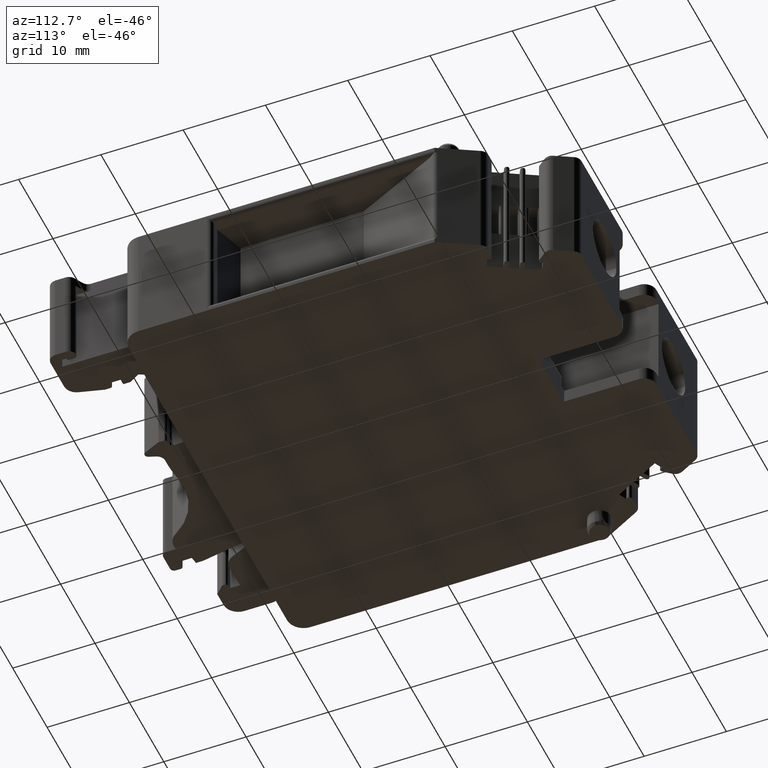
[diagram: clean part render]
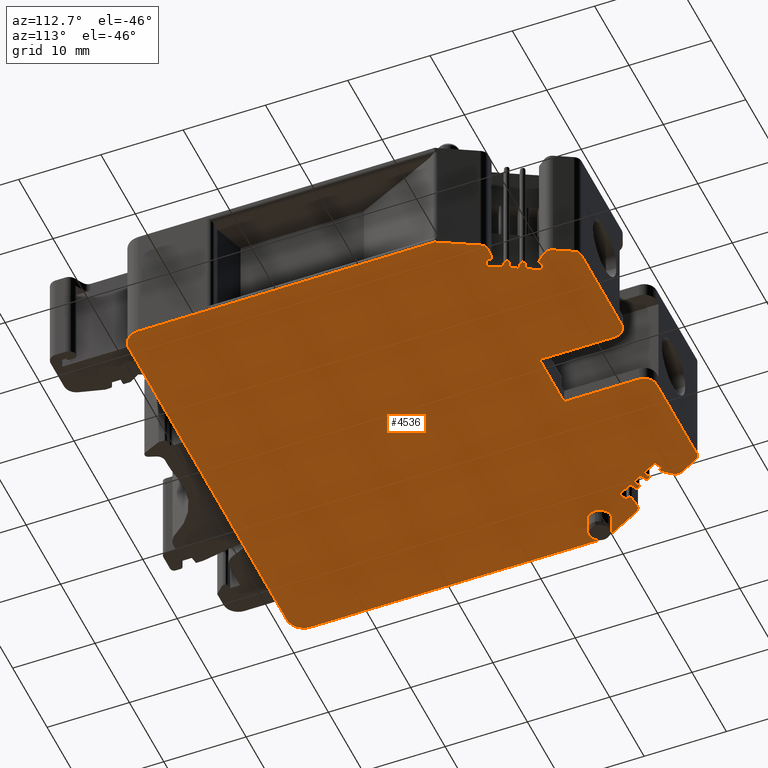
[diagram: same view with one face highlighted and labeled with its STEP entity id]
A machine part, auxiliary view. The second image highlights one B-rep face of the part: STEP entity #4536.
In plain terms, the highlighted planar face has unit normal (0, 0, 1).
Its self-contained STEP definition (entity closure, byte-faithful):
#123=DIRECTION('',(1.E0,0.E0,0.E0));
#124=VECTOR('',#123,1.1693236E1);
#125=CARTESIAN_POINT('',(3.005E1,5.24E1,-1.52E1));
#126=LINE('',#125,#124);
#181=DIRECTION('',(1.E0,-8.507138914012E-14,0.E0));
#182=VECTOR('',#181,1.169323600001E1);
#183=CARTESIAN_POINT('',(8.256763999990E0,5.24E1,-1.52E1));
#184=LINE('',#183,#182);
#215=CARTESIAN_POINT('',(3.005E1,5.09E1,-1.52E1));
#216=DIRECTION('',(0.E0,0.E0,1.E0));
#217=DIRECTION('',(0.E0,1.E0,0.E0));
#218=AXIS2_PLACEMENT_3D('',#215,#216,#217);
#220=DIRECTION('',(0.E0,-1.E0,0.E0));
#221=VECTOR('',#220,9.1E0);
#222=CARTESIAN_POINT('',(2.855E1,5.09E1,-1.52E1));
#223=LINE('',#222,#221);
#224=DIRECTION('',(-1.E0,0.E0,0.E0));
#225=VECTOR('',#224,7.1E0);
#226=CARTESIAN_POINT('',(2.855E1,4.18E1,-1.52E1));
#227=LINE('',#226,#225);
#228=DIRECTION('',(0.E0,1.E0,0.E0));
#229=VECTOR('',#228,9.1E0);
#230=CARTESIAN_POINT('',(2.145E1,4.18E1,-1.52E1));
#231=LINE('',#230,#229);
#232=CARTESIAN_POINT('',(1.995E1,5.09E1,-1.52E1));
#233=DIRECTION('',(0.E0,0.E0,1.E0));
#234=DIRECTION('',(1.E0,0.E0,0.E0));
#235=AXIS2_PLACEMENT_3D('',#232,#233,#234);
#237=CARTESIAN_POINT('',(8.256763085850E0,5.140000212119E1,-1.52E1));
#238=DIRECTION('',(0.E0,0.E0,1.E0));
#239=DIRECTION('',(9.141213609567E-7,9.999999999996E-1,0.E0));
#240=AXIS2_PLACEMENT_3D('',#237,#238,#239);
#242=DIRECTION('',(-4.694714518784E-1,-8.829476518295E-1,0.E0));
#243=VECTOR('',#242,2.361521654980E0);
#244=CARTESIAN_POINT('',(7.373816999998E0,5.1869472E1,-1.52E1));
#245=LINE('',#244,#243);
#246=CARTESIAN_POINT('',(7.148095693080E0,4.931490052930E1,-1.52E1));
#247=DIRECTION('',(0.E0,0.E0,1.E0));
#248=DIRECTION('',(-8.829472123143E-1,4.694722784856E-1,0.E0));
#249=AXIS2_PLACEMENT_3D('',#246,#247,#248);
#251=DIRECTION('',(6.292735728387E-1,-7.771838717619E-1,0.E0));
#252=VECTOR('',#251,1.239305182470E0);
#253=CARTESIAN_POINT('',(6.370913999993E0,4.868562700001E1,-1.52E1));
#254=LINE('',#253,#252);
#255=DIRECTION('',(8.829193589764E-1,-4.695246591445E-1,0.E0));
#256=VECTOR('',#255,2.000001451964E-1);
#257=CARTESIAN_POINT('',(7.150776000004E0,4.7722459E1,-1.52E1));
#258=LINE('',#257,#256);
#259=CARTESIAN_POINT('',(7.421265061770E0,4.780513779792E1,-1.52E1));
#260=DIRECTION('',(0.E0,0.E0,1.E0));
#261=DIRECTION('',(-4.695253187739E-1,-8.829190081940E-1,0.E0));
#262=AXIS2_PLACEMENT_3D('',#259,#260,#261);
#264=DIRECTION('',(4.695235960998E-1,8.829199242885E-1,0.E0));
#265=VECTOR('',#264,2.750000236007E-1);
#266=CARTESIAN_POINT('',(7.597848999993E0,4.771123299998E1,-1.52E1));
#267=LINE('',#266,#265);
#268=DIRECTION('',(8.829198525023E-1,-4.695237310907E-1,0.E0));
#269=VECTOR('',#268,1.050000175407E0);
#270=CARTESIAN_POINT('',(7.726968000001E0,4.7954036E1,-1.52E1));
#271=LINE('',#270,#269);
#272=DIRECTION('',(-4.695241721178E-1,-8.829196179705E-1,0.E0));
#273=VECTOR('',#272,1.949999711137E0);
#274=CARTESIAN_POINT('',(8.654033999999E0,4.7461036E1,-1.52E1));
#275=LINE('',#274,#273);
#276=DIRECTION('',(-8.829196550951E-1,4.695241023065E-1,0.E0));
#277=VECTOR('',#276,7.000002734404E-1);
#278=CARTESIAN_POINT('',(7.738461999998E0,4.5739343E1,-1.52E1));
#279=LINE('',#278,#277);
#280=CARTESIAN_POINT('',(6.9795605E0,4.5803134E1,-1.52E1));
#281=DIRECTION('',(0.E0,0.E0,1.E0));
#282=DIRECTION('',(4.695246591518E-1,8.829193589725E-1,0.E0));
#283=AXIS2_PLACEMENT_3D('',#280,#281,#282);
#285=DIRECTION('',(8.829196543606E-1,-4.695241036877E-1,0.E0));
#286=VECTOR('',#285,7.000002734399E-1);
#287=CARTESIAN_POINT('',(6.838703000001E0,4.5538258E1,-1.52E1));
#288=LINE('',#287,#286);
#289=DIRECTION('',(-4.695240094950E-1,-8.829197044509E-1,0.E0));
#290=VECTOR('',#289,1.200000402310E0);
#291=CARTESIAN_POINT('',(7.456746999479E0,4.520959099903E1,-1.52E1));
#292=LINE('',#291,#290);
#293=DIRECTION('',(-8.829196539438E-1,4.695241044715E-1,0.E0));
#294=VECTOR('',#293,7.000002734326E-1);
#295=CARTESIAN_POINT('',(6.893317999190E0,4.415008699848E1,-1.52E1));
#296=LINE('',#295,#294);
#297=CARTESIAN_POINT('',(6.134417E0,4.42138785E1,-1.52E1));
#298=DIRECTION('',(0.E0,0.E0,1.E0));
#299=DIRECTION('',(4.695240508775E-1,8.829196824443E-1,0.E0));
#300=AXIS2_PLACEMENT_3D('',#297,#298,#299);
#302=DIRECTION('',(8.829193401652E-1,-4.695246945180E-1,0.E0));
#303=VECTOR('',#302,6.999993905287E-1);
#304=CARTESIAN_POINT('',(5.99356E0,4.3949003E1,-1.52E1));
#305=LINE('',#304,#303);
#306=DIRECTION('',(-4.695239595274E-1,-8.829197310230E-1,0.E0));
#307=VECTOR('',#306,1.950000594056E0);
#308=CARTESIAN_POINT('',(6.611603000001E0,4.3620336E1,-1.52E1));
#309=LINE('',#308,#307);
#310=DIRECTION('',(-8.829194576931E-1,4.695244735122E-1,0.E0));
#311=VECTOR('',#310,1.050000644930E0);
#312=CARTESIAN_POINT('',(5.696030999999E0,4.1898642E1,-1.52E1));
#313=LINE('',#312,#311);
#314=DIRECTION('',(4.695264308121E-1,8.829184168250E-1,0.E0));
#315=VECTOR('',#314,2.750004931416E-1);
#316=CARTESIAN_POINT('',(4.768965000001E0,4.2391643E1,-1.52E1));
#317=LINE('',#316,#315);
#318=CARTESIAN_POINT('',(4.721501202080E0,4.272835106177E1,-1.52E1));
#319=DIRECTION('',(0.E0,0.E0,1.E0));
#320=DIRECTION('',(8.829190083100E-1,-4.695253185557E-1,0.E0));
#321=AXIS2_PLACEMENT_3D('',#318,#319,#320);
#323=DIRECTION('',(-8.829214317560E-1,4.695207613577E-1,0.E0));
#324=VECTOR('',#323,1.999996756858E-1);
#325=CARTESIAN_POINT('',(4.815406000007E0,4.2904935E1,-1.52E1));
#326=LINE('',#325,#324);
#327=DIRECTION('',(-9.961894519058E-1,8.721568615578E-2,0.E0));
#328=VECTOR('',#327,1.239077564636E0);
#329=CARTESIAN_POINT('',(4.638822E0,4.2998839E1,-1.52E1));
#330=LINE('',#329,#328);
#331=CARTESIAN_POINT('',(3.317251472990E0,4.211071631745E1,-1.52E1));
#332=DIRECTION('',(0.E0,0.E0,1.E0));
#333=DIRECTION('',(8.721451582047E-2,9.961895543671E-1,0.E0));
#334=AXIS2_PLACEMENT_3D('',#331,#332,#333);
#336=DIRECTION('',(-4.694715754320E-1,-8.829475861349E-1,0.E0));
#337=VECTOR('',#336,5.162212425236E0);
#338=CARTESIAN_POINT('',(2.423511999989E0,4.255930299998E1,-1.52E1));
#339=LINE('',#338,#337);
#340=DIRECTION('',(2.294375410441E-14,-1.E0,0.E0));
#341=VECTOR('',#340,3.600134165325E1);
#342=CARTESIAN_POINT('',(-8.177162650706E-13,3.800134E1,-1.52E1));
#343=LINE('',#342,#341);
#344=CARTESIAN_POINT('',(1.999998505850E0,1.999998505850E0,-1.52E1));
#345=DIRECTION('',(0.E0,0.E0,1.E0));
#346=DIRECTION('',(-1.E0,-2.075200861611E-7,0.E0));
#347=AXIS2_PLACEMENT_3D('',#344,#345,#346);
#349=DIRECTION('',(1.E0,0.E0,0.E0));
#350=VECTOR('',#349,4.600000211210E1);
#351=CARTESIAN_POINT('',(1.999999294430E0,1.124285849604E-13,-1.52E1));
#352=LINE('',#351,#350);
#353=CARTESIAN_POINT('',(4.800000149415E1,1.999998505850E0,-1.52E1));
#354=DIRECTION('',(0.E0,0.E0,1.E0));
#355=DIRECTION('',(4.150540436810E-8,-1.E0,0.E0));
#356=AXIS2_PLACEMENT_3D('',#353,#354,#355);
#358=DIRECTION('',(-4.694715754322E-1,8.829475861348E-1,0.E0));
#359=VECTOR('',#358,5.162212425258E0);
#360=CARTESIAN_POINT('',(5.E1,3.800134E1,-1.52E1));
#361=LINE('',#360,#359);
#362=CARTESIAN_POINT('',(4.668274852701E1,4.211071631745E1,-1.52E1));
#363=DIRECTION('',(0.E0,0.E0,1.E0));
#364=DIRECTION('',(8.937393579866E-1,4.485866248404E-1,0.E0));
#365=AXIS2_PLACEMENT_3D('',#362,#363,#364);
#367=DIRECTION('',(-9.961894519057E-1,-8.721568615671E-2,0.E0));
#368=VECTOR('',#367,1.239077564641E0);
#369=CARTESIAN_POINT('',(4.659553399999E1,4.3106906E1,-1.52E1));
#370=LINE('',#369,#368);
#371=DIRECTION('',(-8.829214317577E-1,-4.695207613545E-1,0.E0));
#372=VECTOR('',#371,1.999996756867E-1);
#373=CARTESIAN_POINT('',(4.5361178E1,4.2998839E1,-1.52E1));
#374=LINE('',#373,#372);
#375=CARTESIAN_POINT('',(4.527849879792E1,4.272835106177E1,-1.52E1));
#376=DIRECTION('',(0.E0,0.E0,1.E0));
#377=DIRECTION('',(-4.695239995845E-1,8.829197097212E-1,0.E0));
#378=AXIS2_PLACEMENT_3D('',#375,#376,#377);
#380=DIRECTION('',(4.695264308158E-1,-8.829184168231E-1,0.E0));
#381=VECTOR('',#380,2.750004931558E-1);
#382=CARTESIAN_POINT('',(4.510191499997E1,4.263444600004E1,-1.52E1));
#383=LINE('',#382,#381);
#384=DIRECTION('',(-8.829194576934E-1,-4.695244735116E-1,0.E0));
#385=VECTOR('',#384,1.050000644927E0);
#386=CARTESIAN_POINT('',(4.5231035E1,4.2391643E1,-1.52E1));
#387=LINE('',#386,#385);
#388=DIRECTION('',(-4.695239595288E-1,8.829197310222E-1,0.E0));
#389=VECTOR('',#388,1.950000594056E0);
#390=CARTESIAN_POINT('',(4.4303969E1,4.1898642E1,-1.52E1));
#391=LINE('',#390,#389);
#392=DIRECTION('',(8.829193401657E-1,4.695246945170E-1,0.E0));
#393=VECTOR('',#392,6.999993905260E-1);
#394=CARTESIAN_POINT('',(4.3388397E1,4.3620336E1,-1.52E1));
#395=LINE('',#394,#393);
#396=CARTESIAN_POINT('',(4.3865583E1,4.42138785E1,-1.52E1));
#397=DIRECTION('',(0.E0,0.E0,1.E0));
#398=DIRECTION('',(4.695240507563E-1,-8.829196825088E-1,0.E0));
#399=AXIS2_PLACEMENT_3D('',#396,#397,#398);
#401=DIRECTION('',(-8.829196547811E-1,-4.695241028969E-1,0.E0));
#402=VECTOR('',#401,7.000002734448E-1);
#403=CARTESIAN_POINT('',(4.3724726E1,4.4478754E1,-1.52E1));
#404=LINE('',#403,#402);
#405=DIRECTION('',(-4.695240094939E-1,8.829197044515E-1,0.E0));
#406=VECTOR('',#405,1.200000400087E0);
#407=CARTESIAN_POINT('',(4.310668200022E1,4.415008699958E1,-1.52E1));
#408=LINE('',#407,#406);
#409=DIRECTION('',(8.829196537038E-1,4.695241049228E-1,0.E0));
#410=VECTOR('',#409,7.000002734432E-1);
#411=CARTESIAN_POINT('',(4.254325300098E1,4.520959099817E1,-1.52E1));
#412=LINE('',#411,#410);
#413=CARTESIAN_POINT('',(4.30204395E1,4.5803134E1,-1.52E1));
#414=DIRECTION('',(0.E0,0.E0,1.E0));
#415=DIRECTION('',(4.695246591218E-1,-8.829193589884E-1,0.E0));
#416=AXIS2_PLACEMENT_3D('',#413,#414,#415);
#418=DIRECTION('',(-8.829196550964E-1,-4.695241023041E-1,0.E0));
#419=VECTOR('',#418,7.000002734389E-1);
#420=CARTESIAN_POINT('',(4.287958199999E1,4.606801E1,-1.52E1));
#421=LINE('',#420,#419);
#422=DIRECTION('',(-4.695241721191E-1,8.829196179698E-1,0.E0));
#423=VECTOR('',#422,1.949999711138E0);
#424=CARTESIAN_POINT('',(4.2261538E1,4.5739343E1,-1.52E1));
#425=LINE('',#424,#423);
#426=DIRECTION('',(8.829198525029E-1,4.695237310895E-1,0.E0));
#427=VECTOR('',#426,1.050000175411E0);
#428=CARTESIAN_POINT('',(4.1345966E1,4.7461036E1,-1.52E1));
#429=LINE('',#428,#427);
#430=DIRECTION('',(4.695235960868E-1,-8.829199242954E-1,1.291895772345E-14));
#431=VECTOR('',#430,2.750000235971E-1);
#432=CARTESIAN_POINT('',(4.2273032E1,4.7954036E1,-1.52E1));
#433=LINE('',#432,#431);
#434=CARTESIAN_POINT('',(4.257873493823E1,4.780513779792E1,-1.52E1));
#435=DIRECTION('',(0.E0,0.E0,1.E0));
#436=DIRECTION('',(-8.829197097165E-1,-4.695239995934E-1,0.E0));
#437=AXIS2_PLACEMENT_3D('',#434,#435,#436);
#439=DIRECTION('',(8.829193589756E-1,4.695246591459E-1,0.E0));
#440=VECTOR('',#439,2.000001452151E-1);
#441=CARTESIAN_POINT('',(4.267263999999E1,4.762855399999E1,-1.52E1));
#442=LINE('',#441,#440);
#443=DIRECTION('',(6.292735728410E-1,7.771838717600E-1,0.E0));
#444=VECTOR('',#443,1.239305182448E0);
#445=CARTESIAN_POINT('',(4.2849224E1,4.772245900001E1,-1.52E1));
#446=LINE('',#445,#444);
#447=CARTESIAN_POINT('',(4.285190430692E1,4.931490052930E1,-1.52E1));
#448=DIRECTION('',(0.E0,0.E0,1.E0));
#449=DIRECTION('',(7.771830303065E-1,-6.292746120761E-1,0.E0));
#450=AXIS2_PLACEMENT_3D('',#447,#448,#449);
#452=DIRECTION('',(-4.694714518805E-1,8.829476518283E-1,0.E0));
#453=VECTOR('',#452,2.361521654998E0);
#454=CARTESIAN_POINT('',(4.373485000002E1,4.978437199998E1,-1.52E1));
#455=LINE('',#454,#453);
#456=CARTESIAN_POINT('',(4.174323691415E1,5.140000212119E1,-1.52E1));
#457=DIRECTION('',(0.E0,0.E0,1.E0));
#458=DIRECTION('',(8.829479587463E-1,4.694708746512E-1,0.E0));
#459=AXIS2_PLACEMENT_3D('',#456,#457,#458);
#461=CARTESIAN_POINT('',(3.E0,3.84E1,-1.52E1));
#462=DIRECTION('',(0.E0,0.E0,-1.E0));
#463=DIRECTION('',(-1.E0,0.E0,0.E0));
#464=AXIS2_PLACEMENT_3D('',#461,#462,#463);
#466=CARTESIAN_POINT('',(3.E0,3.84E1,-1.52E1));
#467=DIRECTION('',(0.E0,0.E0,-1.E0));
#468=DIRECTION('',(1.E0,0.E0,0.E0));
#469=AXIS2_PLACEMENT_3D('',#466,#467,#468);
#1377=DIRECTION('',(-2.072339126992E-14,-1.E0,0.E0));
#1378=VECTOR('',#1377,3.600134084381E1);
#1379=CARTESIAN_POINT('',(5.E1,3.800134E1,-1.52E1));
#1380=LINE('',#1379,#1378);
#3072=CARTESIAN_POINT('',(4.3161297E1,4.5538258E1,-1.52E1));
#3073=VERTEX_POINT('',#3072);
#3074=CARTESIAN_POINT('',(4.254325300098E1,4.520959099817E1,-1.52E1));
#3075=VERTEX_POINT('',#3074);
#3082=CARTESIAN_POINT('',(4.287958199999E1,4.606801E1,-1.52E1));
#3083=VERTEX_POINT('',#3082);
#3085=CARTESIAN_POINT('',(4.2261538E1,4.5739343E1,-1.52E1));
#3087=VERTEX_POINT('',#3085);
#3089=CARTESIAN_POINT('',(4.1345966E1,4.7461036E1,-1.52E1));
#3091=VERTEX_POINT('',#3089);
#3105=CARTESIAN_POINT('',(4.2273032E1,4.7954036E1,-1.52E1));
#3107=VERTEX_POINT('',#3105);
#3112=CARTESIAN_POINT('',(4.2402151E1,4.771123299999E1,-1.52E1));
#3113=VERTEX_POINT('',#3112);
#3118=CARTESIAN_POINT('',(4.267263999999E1,4.762855399999E1,-1.52E1));
#3119=VERTEX_POINT('',#3118);
#3121=CARTESIAN_POINT('',(4.2849224E1,4.772245900001E1,-1.52E1));
#3123=VERTEX_POINT('',#3121);
#3128=CARTESIAN_POINT('',(4.3629086E1,4.868562699999E1,-1.52E1));
#3129=VERTEX_POINT('',#3128);
#3134=CARTESIAN_POINT('',(4.373485000002E1,4.978437199998E1,-1.52E1));
#3135=VERTEX_POINT('',#3134);
#3140=CARTESIAN_POINT('',(4.2626183E1,5.1869472E1,-1.52E1));
#3141=VERTEX_POINT('',#3140);
#3142=CARTESIAN_POINT('',(4.1743236E1,5.24E1,-1.52E1));
#3143=VERTEX_POINT('',#3142);
#3174=CARTESIAN_POINT('',(-8.177162650706E-13,3.800134E1,-1.52E1));
#3175=CARTESIAN_POINT('',(0.E0,1.999998346752E0,-1.52E1));
#3176=VERTEX_POINT('',#3174);
#3177=VERTEX_POINT('',#3175);
#3190=CARTESIAN_POINT('',(5.E1,3.800134E1,-1.52E1));
#3191=VERTEX_POINT('',#3190);
#3192=CARTESIAN_POINT('',(5.E1,1.999999156189E0,-1.52E1));
#3193=VERTEX_POINT('',#3192);
#3230=CARTESIAN_POINT('',(4.7576488E1,4.2559303E1,-1.52E1));
#3231=VERTEX_POINT('',#3230);
#3236=CARTESIAN_POINT('',(4.659553399999E1,4.3106906E1,-1.52E1));
#3237=VERTEX_POINT('',#3236);
#3239=CARTESIAN_POINT('',(4.5361178E1,4.2998839E1,-1.52E1));
#3241=VERTEX_POINT('',#3239);
#3246=CARTESIAN_POINT('',(4.518459399999E1,4.2904935E1,-1.52E1));
#3247=VERTEX_POINT('',#3246);
#3252=CARTESIAN_POINT('',(4.510191499997E1,4.263444600004E1,-1.52E1));
#3253=VERTEX_POINT('',#3252);
#3255=CARTESIAN_POINT('',(4.5231035E1,4.2391643E1,-1.52E1));
#3257=VERTEX_POINT('',#3255);
#3259=CARTESIAN_POINT('',(4.4303969E1,4.1898642E1,-1.52E1));
#3261=VERTEX_POINT('',#3259);
#3263=CARTESIAN_POINT('',(4.3388397E1,4.3620336E1,-1.52E1));
#3265=VERTEX_POINT('',#3263);
#3282=CARTESIAN_POINT('',(4.400644E1,4.3949003E1,-1.52E1));
#3283=VERTEX_POINT('',#3282);
#3288=CARTESIAN_POINT('',(4.3724726E1,4.4478754E1,-1.52E1));
#3289=VERTEX_POINT('',#3288);
#3292=CARTESIAN_POINT('',(4.310668200022E1,4.415008699958E1,-1.52E1));
#3293=VERTEX_POINT('',#3292);
#3368=CARTESIAN_POINT('',(7.373816999998E0,5.1869472E1,-1.52E1));
#3369=VERTEX_POINT('',#3368);
#3370=CARTESIAN_POINT('',(8.256763999969E0,5.24E1,-1.52E1));
#3371=VERTEX_POINT('',#3370);
#3374=CARTESIAN_POINT('',(6.265149999992E0,4.978437199999E1,-1.52E1));
#3375=VERTEX_POINT('',#3374);
#3378=CARTESIAN_POINT('',(6.370913999993E0,4.868562700001E1,-1.52E1));
#3379=VERTEX_POINT('',#3378);
#3380=CARTESIAN_POINT('',(7.150776000004E0,4.7722459E1,-1.52E1));
#3381=VERTEX_POINT('',#3380);
#3384=CARTESIAN_POINT('',(7.327359999996E0,4.7628554E1,-1.52E1));
#3385=VERTEX_POINT('',#3384);
#3388=CARTESIAN_POINT('',(7.597848999993E0,4.771123299998E1,-1.52E1));
#3389=VERTEX_POINT('',#3388);
#3390=CARTESIAN_POINT('',(7.726968000001E0,4.7954036E1,-1.52E1));
#3391=VERTEX_POINT('',#3390);
#3392=CARTESIAN_POINT('',(8.654033999999E0,4.7461036E1,-1.52E1));
#3393=VERTEX_POINT('',#3392);
#3394=CARTESIAN_POINT('',(7.738461999998E0,4.5739343E1,-1.52E1));
#3395=VERTEX_POINT('',#3394);
#3410=CARTESIAN_POINT('',(7.120418000005E0,4.606801E1,-1.52E1));
#3411=VERTEX_POINT('',#3410);
#3414=CARTESIAN_POINT('',(6.838703000001E0,4.5538258E1,-1.52E1));
#3415=VERTEX_POINT('',#3414);
#3420=CARTESIAN_POINT('',(7.456746999479E0,4.520959099903E1,-1.52E1));
#3421=VERTEX_POINT('',#3420);
#3448=CARTESIAN_POINT('',(6.275274000011E0,4.4478754E1,-1.52E1));
#3449=VERTEX_POINT('',#3448);
#3450=CARTESIAN_POINT('',(6.893317999190E0,4.415008699848E1,-1.52E1));
#3451=VERTEX_POINT('',#3450);
#3454=CARTESIAN_POINT('',(5.99356E0,4.3949003E1,-1.52E1));
#3455=VERTEX_POINT('',#3454);
#3456=CARTESIAN_POINT('',(6.611603000001E0,4.3620336E1,-1.52E1));
#3457=VERTEX_POINT('',#3456);
#3458=CARTESIAN_POINT('',(5.696030999999E0,4.1898642E1,-1.52E1));
#3459=VERTEX_POINT('',#3458);
#3472=CARTESIAN_POINT('',(4.768965000001E0,4.2391643E1,-1.52E1));
#3473=VERTEX_POINT('',#3472);
#3476=CARTESIAN_POINT('',(4.898085000017E0,4.263444600003E1,-1.52E1));
#3477=VERTEX_POINT('',#3476);
#3480=CARTESIAN_POINT('',(4.815406000007E0,4.2904935E1,-1.52E1));
#3481=VERTEX_POINT('',#3480);
#3482=CARTESIAN_POINT('',(4.638822E0,4.2998839E1,-1.52E1));
#3483=VERTEX_POINT('',#3482);
#3486=CARTESIAN_POINT('',(3.404466000017E0,4.3106906E1,-1.52E1));
#3487=VERTEX_POINT('',#3486);
#3490=CARTESIAN_POINT('',(2.423511999989E0,4.255930299998E1,-1.52E1));
#3491=VERTEX_POINT('',#3490);
#3506=CARTESIAN_POINT('',(1.999998920890E0,4.307665335546E-14,-1.52E1));
#3507=VERTEX_POINT('',#3506);
#3508=CARTESIAN_POINT('',(4.800000140653E1,3.567516652462E-14,-1.52E1));
#3509=VERTEX_POINT('',#3508);
#3510=CARTESIAN_POINT('',(1.6E0,3.84E1,-1.52E1));
#3511=CARTESIAN_POINT('',(4.4E0,3.84E1,-1.52E1));
#3512=VERTEX_POINT('',#3510);
#3513=VERTEX_POINT('',#3511);
#3942=CARTESIAN_POINT('',(2.855E1,5.09E1,-1.52E1));
#3943=CARTESIAN_POINT('',(2.855E1,4.18E1,-1.52E1));
#3944=VERTEX_POINT('',#3942);
#3945=VERTEX_POINT('',#3943);
#3946=CARTESIAN_POINT('',(2.145E1,4.18E1,-1.52E1));
#3947=VERTEX_POINT('',#3946);
#3948=CARTESIAN_POINT('',(2.145E1,5.09E1,-1.52E1));
#3949=VERTEX_POINT('',#3948);
#3950=CARTESIAN_POINT('',(3.005E1,5.24E1,-1.52E1));
#3951=VERTEX_POINT('',#3950);
#3952=CARTESIAN_POINT('',(1.995E1,5.24E1,-1.52E1));
#3953=VERTEX_POINT('',#3952);
#4422=CARTESIAN_POINT('',(2.5E1,2.62E1,-1.52E1));
#4423=DIRECTION('',(0.E0,0.E0,1.E0));
#4424=DIRECTION('',(-1.E0,0.E0,0.E0));
#4425=AXIS2_PLACEMENT_3D('',#4422,#4423,#4424);
#4426=PLANE('',#4425);
#4427=ORIENTED_EDGE('',*,*,#4288,.F.);
#4428=ORIENTED_EDGE('',*,*,#4317,.T.);
#4429=ORIENTED_EDGE('',*,*,#4332,.T.);
#4430=ORIENTED_EDGE('',*,*,#4347,.T.);
#4431=ORIENTED_EDGE('',*,*,#4370,.T.);
#4432=ORIENTED_EDGE('',*,*,#4385,.T.);
#4433=ORIENTED_EDGE('',*,*,#4398,.F.);
#4435=ORIENTED_EDGE('',*,*,#4434,.T.);
#4437=ORIENTED_EDGE('',*,*,#4436,.T.);
#4439=ORIENTED_EDGE('',*,*,#4438,.T.);
#4441=ORIENTED_EDGE('',*,*,#4440,.T.);
#4443=ORIENTED_EDGE('',*,*,#4442,.T.);
#4445=ORIENTED_EDGE('',*,*,#4444,.T.);
#4447=ORIENTED_EDGE('',*,*,#4446,.T.);
#4449=ORIENTED_EDGE('',*,*,#4448,.T.);
#4451=ORIENTED_EDGE('',*,*,#4450,.T.);
#4453=ORIENTED_EDGE('',*,*,#4452,.T.);
#4455=ORIENTED_EDGE('',*,*,#4454,.T.);
#4457=ORIENTED_EDGE('',*,*,#4456,.T.);
#4459=ORIENTED_EDGE('',*,*,#4458,.T.);
#4461=ORIENTED_EDGE('',*,*,#4460,.T.);
#4463=ORIENTED_EDGE('',*,*,#4462,.T.);
#4465=ORIENTED_EDGE('',*,*,#4464,.T.);
#4467=ORIENTED_EDGE('',*,*,#4466,.T.);
#4469=ORIENTED_EDGE('',*,*,#4468,.T.);
#4471=ORIENTED_EDGE('',*,*,#4470,.T.);
#4473=ORIENTED_EDGE('',*,*,#4472,.T.);
#4475=ORIENTED_EDGE('',*,*,#4474,.T.);
#4477=ORIENTED_EDGE('',*,*,#4476,.T.);
#4479=ORIENTED_EDGE('',*,*,#4478,.T.);
#4481=ORIENTED_EDGE('',*,*,#4480,.T.);
#4483=ORIENTED_EDGE('',*,*,#4482,.T.);
#4485=ORIENTED_EDGE('',*,*,#4484,.T.);
#4487=ORIENTED_EDGE('',*,*,#4486,.T.);
#4489=ORIENTED_EDGE('',*,*,#4488,.T.);
#4491=ORIENTED_EDGE('',*,*,#4490,.F.);
#4493=ORIENTED_EDGE('',*,*,#4492,.T.);
#4495=ORIENTED_EDGE('',*,*,#4494,.T.);
#4497=ORIENTED_EDGE('',*,*,#4496,.T.);
#4499=ORIENTED_EDGE('',*,*,#4498,.T.);
#4501=ORIENTED_EDGE('',*,*,#4500,.T.);
#4503=ORIENTED_EDGE('',*,*,#4502,.T.);
#4505=ORIENTED_EDGE('',*,*,#4504,.T.);
#4507=ORIENTED_EDGE('',*,*,#4506,.T.);
#4509=ORIENTED_EDGE('',*,*,#4508,.T.);
#4511=ORIENTED_EDGE('',*,*,#4510,.T.);
#4513=ORIENTED_EDGE('',*,*,#4512,.T.);
#4515=ORIENTED_EDGE('',*,*,#4514,.T.);
#4516=ORIENTED_EDGE('',*,*,#4071,.T.);
#4517=ORIENTED_EDGE('',*,*,#4092,.T.);
#4518=ORIENTED_EDGE('',*,*,#4108,.T.);
#4519=ORIENTED_EDGE('',*,*,#4124,.T.);
#4520=ORIENTED_EDGE('',*,*,#4153,.T.);
#4521=ORIENTED_EDGE('',*,*,#4170,.T.);
#4522=ORIENTED_EDGE('',*,*,#4187,.T.);
#4523=ORIENTED_EDGE('',*,*,#4203,.T.);
#4524=ORIENTED_EDGE('',*,*,#4221,.T.);
#4525=ORIENTED_EDGE('',*,*,#4238,.T.);
#4526=ORIENTED_EDGE('',*,*,#4256,.T.);
#4527=ORIENTED_EDGE('',*,*,#4272,.T.);
#4528=EDGE_LOOP('',(#4427,#4428,#4429,#4430,#4431,#4432,#4433,#4435,#4437,#4439,
#4441,#4443,#4445,#4447,#4449,#4451,#4453,#4455,#4457,#4459,#4461,#4463,#4465,
#4467,#4469,#4471,#4473,#4475,#4477,#4479,#4481,#4483,#4485,#4487,#4489,#4491,
#4493,#4495,#4497,#4499,#4501,#4503,#4505,#4507,#4509,#4511,#4513,#4515,#4516,
#4517,#4518,#4519,#4520,#4521,#4522,#4523,#4524,#4525,#4526,#4527));
#4529=FACE_OUTER_BOUND('',#4528,.F.);
#4531=ORIENTED_EDGE('',*,*,#4530,.T.);
#4533=ORIENTED_EDGE('',*,*,#4532,.T.);
#4534=EDGE_LOOP('',(#4531,#4533));
#4535=FACE_BOUND('',#4534,.F.);
#4536=ADVANCED_FACE('',(#4529,#4535),#4426,.F.);
#219=CIRCLE('',#218,1.5E0);
#236=CIRCLE('',#235,1.5E0);
#241=CIRCLE('',#240,9.999978788140E-1);
#250=CIRCLE('',#249,9.999982793670E-1);
#263=CIRCLE('',#262,1.999999957870E-1);
#284=CIRCLE('',#283,3.000002178040E-1);
#301=CIRCLE('',#300,2.999995415820E-1);
#322=CIRCLE('',#321,1.999999957870E-1);
#335=CIRCLE('',#334,1.000000128668E0);
#348=CIRCLE('',#347,1.999998505850E0);
#357=CIRCLE('',#356,1.999998505850E0);
#366=CIRCLE('',#365,1.000000128670E0);
#379=CIRCLE('',#378,1.999999957900E-1);
#400=CIRCLE('',#399,2.999995415800E-1);
#417=CIRCLE('',#416,3.000002178E-1);
#438=CIRCLE('',#437,1.999999957900E-1);
#451=CIRCLE('',#450,9.999982793700E-1);
#460=CIRCLE('',#459,9.999978788100E-1);
#465=CIRCLE('',#464,1.4E0);
#470=CIRCLE('',#469,1.4E0);
#4071=EDGE_CURVE('',#3075,#3073,#412,.T.);
#4092=EDGE_CURVE('',#3073,#3083,#417,.T.);
#4108=EDGE_CURVE('',#3083,#3087,#421,.T.);
#4124=EDGE_CURVE('',#3087,#3091,#425,.T.);
#4153=EDGE_CURVE('',#3091,#3107,#429,.T.);
#4170=EDGE_CURVE('',#3107,#3113,#433,.T.);
#4187=EDGE_CURVE('',#3113,#3119,#438,.T.);
#4203=EDGE_CURVE('',#3119,#3123,#442,.T.);
#4221=EDGE_CURVE('',#3123,#3129,#446,.T.);
#4238=EDGE_CURVE('',#3129,#3135,#451,.T.);
#4256=EDGE_CURVE('',#3135,#3141,#455,.T.);
#4272=EDGE_CURVE('',#3141,#3143,#460,.T.);
#4288=EDGE_CURVE('',#3951,#3143,#126,.T.);
#4317=EDGE_CURVE('',#3951,#3944,#219,.T.);
#4332=EDGE_CURVE('',#3944,#3945,#223,.T.);
#4347=EDGE_CURVE('',#3945,#3947,#227,.T.);
#4370=EDGE_CURVE('',#3947,#3949,#231,.T.);
#4385=EDGE_CURVE('',#3949,#3953,#236,.T.);
#4398=EDGE_CURVE('',#3371,#3953,#184,.T.);
#4434=EDGE_CURVE('',#3371,#3369,#241,.T.);
#4436=EDGE_CURVE('',#3369,#3375,#245,.T.);
#4438=EDGE_CURVE('',#3375,#3379,#250,.T.);
#4440=EDGE_CURVE('',#3379,#3381,#254,.T.);
#4442=EDGE_CURVE('',#3381,#3385,#258,.T.);
#4444=EDGE_CURVE('',#3385,#3389,#263,.T.);
#4446=EDGE_CURVE('',#3389,#3391,#267,.T.);
#4448=EDGE_CURVE('',#3391,#3393,#271,.T.);
#4450=EDGE_CURVE('',#3393,#3395,#275,.T.);
#4452=EDGE_CURVE('',#3395,#3411,#279,.T.);
#4454=EDGE_CURVE('',#3411,#3415,#284,.T.);
#4456=EDGE_CURVE('',#3415,#3421,#288,.T.);
#4458=EDGE_CURVE('',#3421,#3451,#292,.T.);
#4460=EDGE_CURVE('',#3451,#3449,#296,.T.);
#4462=EDGE_CURVE('',#3449,#3455,#301,.T.);
#4464=EDGE_CURVE('',#3455,#3457,#305,.T.);
#4466=EDGE_CURVE('',#3457,#3459,#309,.T.);
#4468=EDGE_CURVE('',#3459,#3473,#313,.T.);
#4470=EDGE_CURVE('',#3473,#3477,#317,.T.);
#4472=EDGE_CURVE('',#3477,#3481,#322,.T.);
#4474=EDGE_CURVE('',#3481,#3483,#326,.T.);
#4476=EDGE_CURVE('',#3483,#3487,#330,.T.);
#4478=EDGE_CURVE('',#3487,#3491,#335,.T.);
#4480=EDGE_CURVE('',#3491,#3176,#339,.T.);
#4482=EDGE_CURVE('',#3176,#3177,#343,.T.);
#4484=EDGE_CURVE('',#3177,#3507,#348,.T.);
#4486=EDGE_CURVE('',#3507,#3509,#352,.T.);
#4488=EDGE_CURVE('',#3509,#3193,#357,.T.);
#4490=EDGE_CURVE('',#3191,#3193,#1380,.T.);
#4492=EDGE_CURVE('',#3191,#3231,#361,.T.);
#4494=EDGE_CURVE('',#3231,#3237,#366,.T.);
#4496=EDGE_CURVE('',#3237,#3241,#370,.T.);
#4498=EDGE_CURVE('',#3241,#3247,#374,.T.);
#4500=EDGE_CURVE('',#3247,#3253,#379,.T.);
#4502=EDGE_CURVE('',#3253,#3257,#383,.T.);
#4504=EDGE_CURVE('',#3257,#3261,#387,.T.);
#4506=EDGE_CURVE('',#3261,#3265,#391,.T.);
#4508=EDGE_CURVE('',#3265,#3283,#395,.T.);
#4510=EDGE_CURVE('',#3283,#3289,#400,.T.);
#4512=EDGE_CURVE('',#3289,#3293,#404,.T.);
#4514=EDGE_CURVE('',#3293,#3075,#408,.T.);
#4530=EDGE_CURVE('',#3512,#3513,#465,.T.);
#4532=EDGE_CURVE('',#3513,#3512,#470,.T.);